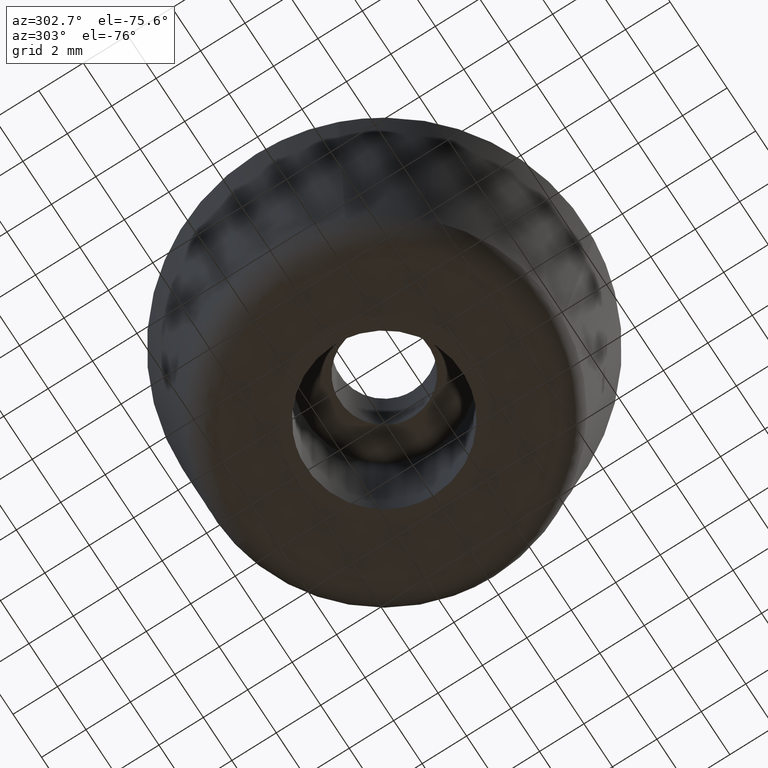
[diagram: clean part render]
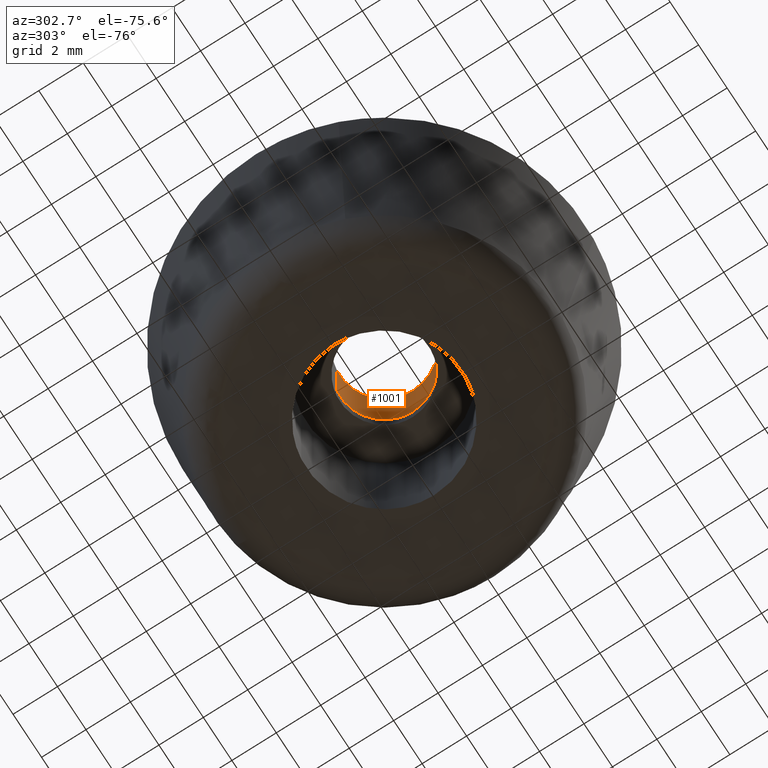
[diagram: same view with one face highlighted and labeled with its STEP entity id]
A machine part, auxiliary view. The second image highlights one B-rep face of the part: STEP entity #1001.
In plain terms, the highlighted face is a freeform B-spline surface patch.
Its self-contained STEP definition (entity closure, byte-faithful):
#899=CARTESIAN_POINT('',(-0.236068469313517,1.986019052727332,11.080000000000005));
#900=CARTESIAN_POINT('',(-0.179229457275955,1.992775230897211,11.080000000000004));
#901=CARTESIAN_POINT('',(-0.122097079069714,1.996269596843733,11.080000000000000));
#902=CARTESIAN_POINT('',(1.874172517774020,2.118366675913447,11.080000000000002));
#903=CARTESIAN_POINT('',(1.996269596843733,0.122097079069714,11.080000000000000));
#904=CARTESIAN_POINT('',(2.118366675913447,-1.874172517774020,11.080000000000002));
#905=CARTESIAN_POINT('',(0.122097079069714,-1.996269596843733,11.080000000000000));
#906=CARTESIAN_POINT('',(-0.236068469313517,1.986019052727332,7.717999999999999));
#907=CARTESIAN_POINT('',(-0.179229457275955,1.992775230897211,7.717999999999999));
#908=CARTESIAN_POINT('',(-0.122097079069714,1.996269596843733,7.717999999999998));
#909=CARTESIAN_POINT('',(1.874172517774020,2.118366675913447,7.717999999999998));
#910=CARTESIAN_POINT('',(1.996269596843733,0.122097079069714,7.717999999999998));
#911=CARTESIAN_POINT('',(2.118366675913447,-1.874172517774020,7.717999999999998));
#912=CARTESIAN_POINT('',(0.122097079069714,-1.996269596843733,7.717999999999998));
#920=(BOUNDED_SURFACE()B_SPLINE_SURFACE(2,1,((#899,#906),(#900,#907),(#901,#908),(#902,#909),(#903,#910),(#904,#911),(#905,#912)),.UNSPECIFIED.,.F.,.F.,.U.)B_SPLINE_SURFACE_WITH_KNOTS((3,2,2,3),(2,2),(0.0,0.132548339959391,3.446256838944149,6.759965337928908),(0.0,3.362000000000005),.UNSPECIFIED.)GEOMETRIC_REPRESENTATION_ITEM()RATIONAL_B_SPLINE_SURFACE(((0.977505800795127,0.977505800795127),(0.988284271247462,0.988284271247462),(1.0,1.0),(0.707106781186548,0.707106781186548),(1.0,1.0),(0.707106781186548,0.707106781186548),(1.0,1.0)))REPRESENTATION_ITEM('')SURFACE());
#921=CARTESIAN_POINT('',(-0.236066495238472,1.986019287374086,10.999999999999980));
#922=VERTEX_POINT('',#921);
#923=CARTESIAN_POINT('',(2.0,0.0,11.0));
#924=VERTEX_POINT('',#923);
#925=CARTESIAN_POINT('',(-0.236066495238472,1.986019287374086,10.999999999999980));
#926=CARTESIAN_POINT('',(-0.118447241831610,2.000000000000000,11.000000000000005));
#927=CARTESIAN_POINT('',(0.0,2.0,11.0));
#928=CARTESIAN_POINT('',(2.000000000000000,2.000000000000000,11.0));
#929=CARTESIAN_POINT('',(2.0,0.0,11.0));
#937=(BOUNDED_CURVE()B_SPLINE_CURVE(2,(#925,#926,#927,#928,#929),.UNSPECIFIED.,.F.,.U.)B_SPLINE_CURVE_WITH_KNOTS((3,2,3),(0.229562641502510,0.250000000000000,0.500000000000000),.UNSPECIFIED.)CURVE()GEOMETRIC_REPRESENTATION_ITEM()RATIONAL_B_SPLINE_CURVE((0.956027083449283,0.976056145142503,1.0,0.707106781186548,1.0))REPRESENTATION_ITEM(''));
#938=EDGE_CURVE('',#922,#924,#937,.T.);
#939=ORIENTED_EDGE('',*,*,#938,.F.);
#940=CARTESIAN_POINT('',(-0.236066518982172,1.986019284551835,7.800000000000000));
#941=VERTEX_POINT('',#940);
#942=CARTESIAN_POINT('',(-0.236066495238472,1.986019287374086,10.999999999999980));
#943=CARTESIAN_POINT('',(-0.236066518982172,1.986019284551835,7.800000000000000));
#944=QUASI_UNIFORM_CURVE('',1,(#942,#943),.UNSPECIFIED.,.F.,.U.);
#945=EDGE_CURVE('',#922,#941,#944,.T.);
#946=ORIENTED_EDGE('',*,*,#945,.T.);
#947=CARTESIAN_POINT('',(2.0,0.0,7.800000000000000));
#948=VERTEX_POINT('',#947);
#949=CARTESIAN_POINT('',(-0.236066518982172,1.986019284551835,7.800000000000000));
#950=CARTESIAN_POINT('',(-0.118447253828965,2.0,7.800000000000000));
#951=CARTESIAN_POINT('',(0.0,2.0,7.800000000000000));
#952=CARTESIAN_POINT('',(2.000000000000000,2.000000000000000,7.800000000000001));
#953=CARTESIAN_POINT('',(2.0,0.0,7.800000000000000));
#961=(BOUNDED_CURVE()B_SPLINE_CURVE(2,(#949,#950,#951,#952,#953),.UNSPECIFIED.,.F.,.U.)B_SPLINE_CURVE_WITH_KNOTS((3,2,3),(0.229562639482005,0.250000000000000,0.500000000000000),.UNSPECIFIED.)CURVE()GEOMETRIC_REPRESENTATION_ITEM()RATIONAL_B_SPLINE_CURVE((0.956027079489002,0.976056142775333,1.0,0.707106781186548,1.0))REPRESENTATION_ITEM(''));
#962=EDGE_CURVE('',#941,#948,#961,.T.);
#963=ORIENTED_EDGE('',*,*,#962,.T.);
#964=CARTESIAN_POINT('',(0.122097079084357,-1.996269596842838,7.800000000000001));
#965=VERTEX_POINT('',#964);
#966=CARTESIAN_POINT('',(2.0,0.0,7.800000000000000));
#967=CARTESIAN_POINT('',(2.000000000000000,-1.881412133783725,7.799999999999998));
#968=CARTESIAN_POINT('',(0.122097079084357,-1.996269596842838,7.800000000000001));
#976=(BOUNDED_CURVE()B_SPLINE_CURVE(2,(#966,#967,#968),.UNSPECIFIED.,.F.,.U.)B_SPLINE_CURVE_WITH_KNOTS((3,3),(0.500000000000000,0.739332962239436),.UNSPECIFIED.)CURVE()GEOMETRIC_REPRESENTATION_ITEM()RATIONAL_B_SPLINE_CURVE((1.0,0.719603993286133,0.976072041667774))REPRESENTATION_ITEM(''));
#977=EDGE_CURVE('',#948,#965,#976,.T.);
#978=ORIENTED_EDGE('',*,*,#977,.T.);
#979=CARTESIAN_POINT('',(0.122097079084357,-1.996269596842838,11.0));
#980=VERTEX_POINT('',#979);
#981=CARTESIAN_POINT('',(0.122097079084357,-1.996269596842838,11.0));
#982=CARTESIAN_POINT('',(0.122097079084357,-1.996269596842838,7.800000000000001));
#983=QUASI_UNIFORM_CURVE('',1,(#981,#982),.UNSPECIFIED.,.F.,.U.);
#984=EDGE_CURVE('',#980,#965,#983,.T.);
#985=ORIENTED_EDGE('',*,*,#984,.F.);
#986=CARTESIAN_POINT('',(2.0,0.0,11.0));
#987=CARTESIAN_POINT('',(2.000000000000000,-1.881412133783748,11.0));
#988=CARTESIAN_POINT('',(0.122097079084357,-1.996269596842838,11.000000000000004));
#996=(BOUNDED_CURVE()B_SPLINE_CURVE(2,(#986,#987,#988),.UNSPECIFIED.,.F.,.U.)B_SPLINE_CURVE_WITH_KNOTS((3,3),(0.500000000000000,0.739332962239438),.UNSPECIFIED.)CURVE()GEOMETRIC_REPRESENTATION_ITEM()RATIONAL_B_SPLINE_CURVE((1.0,0.719603993286130,0.976072041667779))REPRESENTATION_ITEM(''));
#997=EDGE_CURVE('',#924,#980,#996,.T.);
#998=ORIENTED_EDGE('',*,*,#997,.F.);
#999=EDGE_LOOP('',(#939,#946,#963,#978,#985,#998));
#1000=FACE_OUTER_BOUND('',#999,.T.);
#1001=ADVANCED_FACE('',(#1000),#920,.F.);